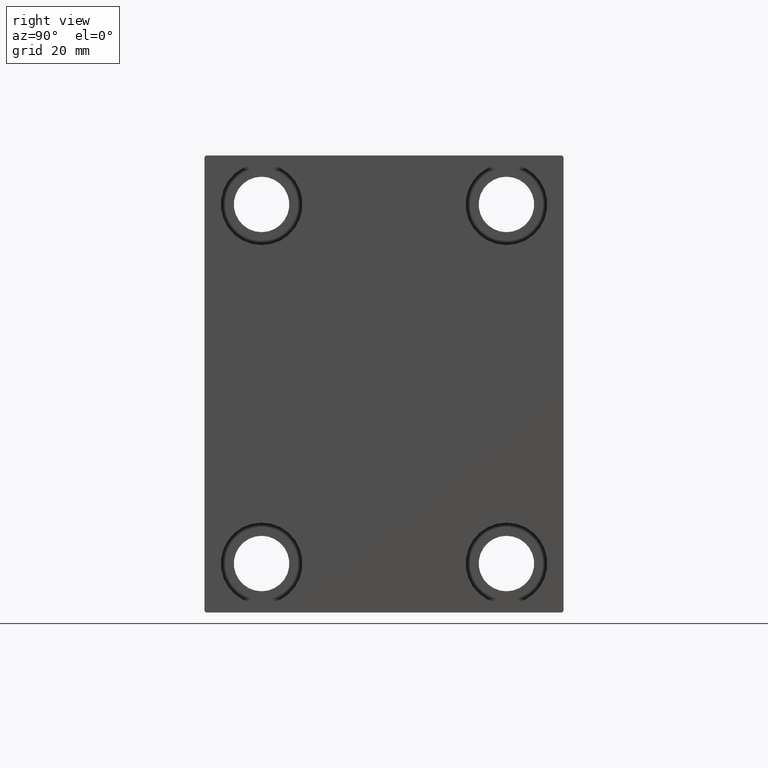
[diagram: clean part render]
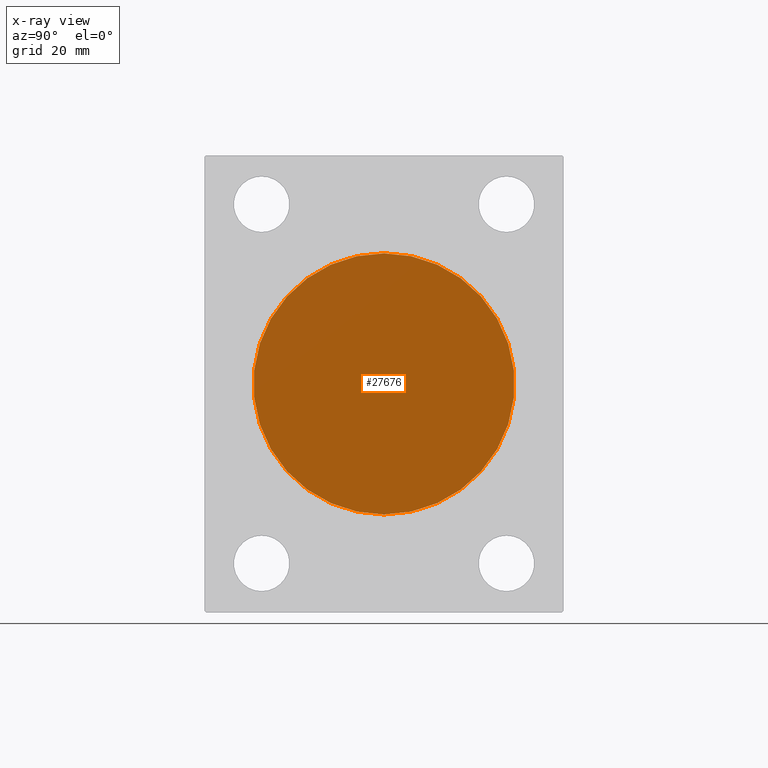
[diagram: x-ray — body ghosted, one internal face saturated and labeled with its STEP entity id]
A machine part, right view, then the same camera in x-ray: the body is ghosted and one INTERNAL B-rep face — a face not visible from any outside direction — is saturated and labeled: STEP entity #27676.
In plain terms, the highlighted planar face has unit normal (-1, 0, 0).
Its self-contained STEP definition (entity closure, byte-faithful):
#1876 = DIRECTION ( 'NONE',  ( -1.000000000000000000, 0.000000000000000000, 0.000000000000000000 ) ) ;
#3584 = CARTESIAN_POINT ( 'NONE',  ( 51.00000000000000000, 0.000000000000000000, 0.000000000000000000 ) ) ;
#7091 = DIRECTION ( 'NONE',  ( 0.000000000000000000, 0.000000000000000000, 1.000000000000000000 ) ) ;
#10896 = AXIS2_PLACEMENT_3D ( 'NONE', #43067, #1876, #12365 ) ;
#12365 = DIRECTION ( 'NONE',  ( 0.000000000000000000, 0.000000000000000000, 1.000000000000000000 ) ) ;
#13584 = DIRECTION ( 'NONE',  ( -1.000000000000000000, 0.000000000000000000, 0.000000000000000000 ) ) ;
#13639 = DIRECTION ( 'NONE',  ( 0.000000000000000000, 0.000000000000000000, 1.000000000000000000 ) ) ;
#15059 = CARTESIAN_POINT ( 'NONE',  ( 51.00000000000000000, 0.000000000000000000, 40.00000000000000000 ) ) ;
#15377 = AXIS2_PLACEMENT_3D ( 'NONE', #3584, #30758, #13639 ) ;
#16687 = AXIS2_PLACEMENT_3D ( 'NONE', #38038, #13584, #7091 ) ;
#17129 = PLANE ( 'NONE',  #16687 ) ;
#19219 = EDGE_CURVE ( 'NONE', #24666, #21043, #39332, .T. ) ;
#21043 = VERTEX_POINT ( 'NONE', #15059 ) ;
#21094 = ORIENTED_EDGE ( 'NONE', *, *, #33541, .T. ) ;
#24666 = VERTEX_POINT ( 'NONE', #28921 ) ;
#27676 = ADVANCED_FACE ( 'NONE', ( #31143 ), #17129, .T. ) ;
#28921 = CARTESIAN_POINT ( 'NONE',  ( 51.00000000000000000, 4.898587196589413026E-15, -40.00000000000000000 ) ) ;
#29233 = EDGE_LOOP ( 'NONE', ( #21094, #39306 ) ) ;
#30758 = DIRECTION ( 'NONE',  ( -1.000000000000000000, 0.000000000000000000, 0.000000000000000000 ) ) ;
#31143 = FACE_OUTER_BOUND ( 'NONE', #29233, .T. ) ;
#33541 = EDGE_CURVE ( 'NONE', #21043, #24666, #42402, .T. ) ;
#38038 = CARTESIAN_POINT ( 'NONE',  ( 51.00000000000000000, 0.000000000000000000, 0.000000000000000000 ) ) ;
#39306 = ORIENTED_EDGE ( 'NONE', *, *, #19219, .T. ) ;
#39332 = CIRCLE ( 'NONE', #10896, 40.00000000000000000 ) ;
#42402 = CIRCLE ( 'NONE', #15377, 40.00000000000000000 ) ;
#43067 = CARTESIAN_POINT ( 'NONE',  ( 51.00000000000000000, 0.000000000000000000, 0.000000000000000000 ) ) ;